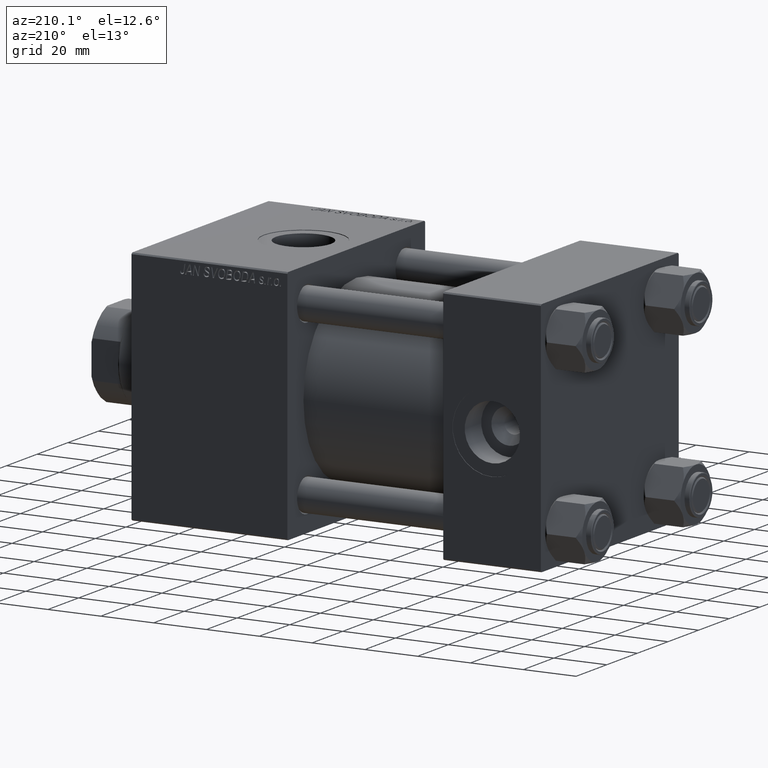
[diagram: clean part render]
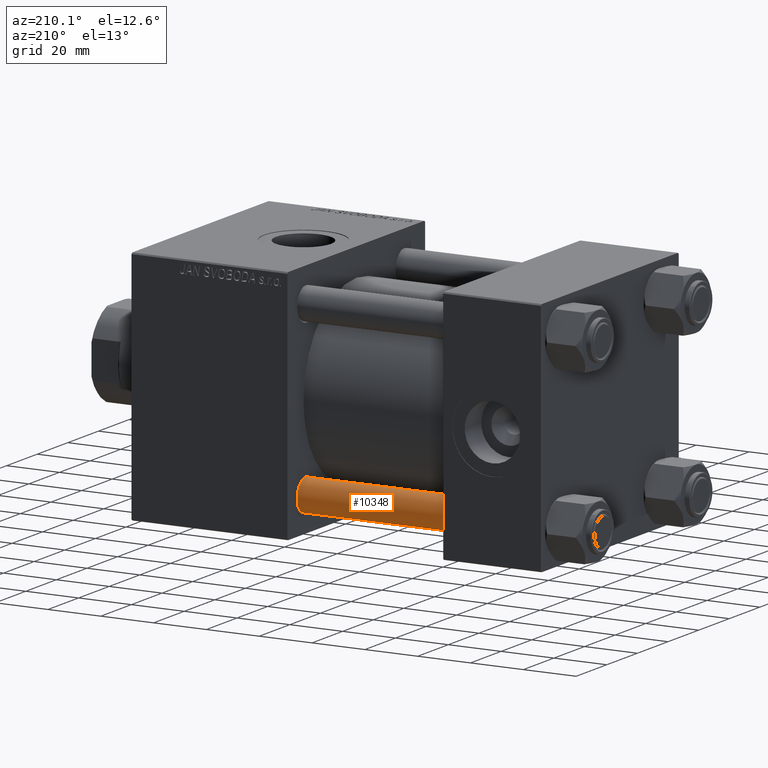
[diagram: same view with one face highlighted and labeled with its STEP entity id]
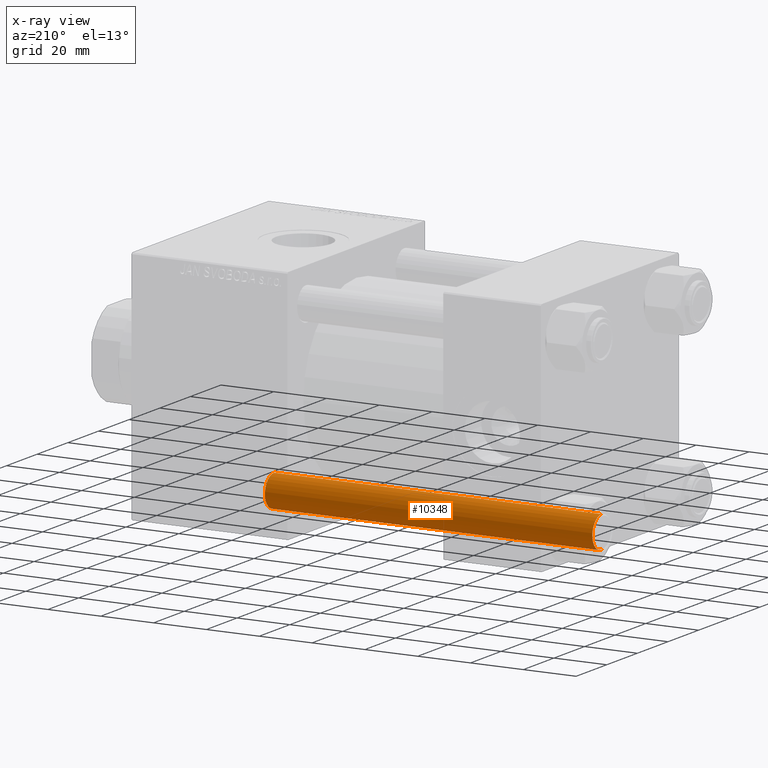
[diagram: x-ray of the same camera — body ghosted, the highlighted face saturated]
A machine part, auxiliary view. The second image highlights one B-rep face of the part: STEP entity #10348.
The next image is the same camera in x-ray: the body ghosted, the highlighted face saturated — about 0% of this face is hidden behind the body in this view.
In plain terms, the highlighted cylindrical surface (edge-blend (fillet) strip) has radius 6 mm, axis along (1, -0, -0).
Its self-contained STEP definition (entity closure, byte-faithful):
#469 = LINE ( 'NONE', #46675, #2949 ) ;
#1296 = VERTEX_POINT ( 'NONE', #43902 ) ;
#2242 = DIRECTION ( 'NONE',  ( 1.000000000000000000, 0.000000000000000000, 0.000000000000000000 ) ) ;
#2949 = VECTOR ( 'NONE', #16174, 1000.000000000000000 ) ;
#3173 = VERTEX_POINT ( 'NONE', #33052 ) ;
#3893 = LINE ( 'NONE', #46537, #8969 ) ;
#4288 = VERTEX_POINT ( 'NONE', #24934 ) ;
#5369 = DIRECTION ( 'NONE',  ( -0.000000000000000000, -0.000000000000000000, -1.000000000000000000 ) ) ;
#5945 = AXIS2_PLACEMENT_3D ( 'NONE', #9728, #6186, #24705 ) ;
#6186 = DIRECTION ( 'NONE',  ( 0.000000000000000000, 0.000000000000000000, -1.000000000000000000 ) ) ;
#8969 = VECTOR ( 'NONE', #11748, 1000.000000000000000 ) ;
#9728 = CARTESIAN_POINT ( 'NONE',  ( 0.000000000000000000, 0.000000000000000000, 124.5000000000000000 ) ) ;
#9817 = ORIENTED_EDGE ( 'NONE', *, *, #29481, .F. ) ;
#10074 = EDGE_CURVE ( 'NONE', #46132, #4288, #23768, .T. ) ;
#10348 = ADVANCED_FACE ( 'NONE', ( #13967 ), #29446, .T. ) ;
#11748 = DIRECTION ( 'NONE',  ( -0.000000000000000000, -0.000000000000000000, -1.000000000000000000 ) ) ;
#13967 = FACE_OUTER_BOUND ( 'NONE', #38427, .T. ) ;
#14591 = CARTESIAN_POINT ( 'NONE',  ( -6.000000000000000888, 0.000000000000000000, 124.5000000000000000 ) ) ;
#16174 = DIRECTION ( 'NONE',  ( -0.000000000000000000, -0.000000000000000000, -1.000000000000000000 ) ) ;
#17454 = CARTESIAN_POINT ( 'NONE',  ( 0.000000000000000000, 0.000000000000000000, 0.4999999999999865663 ) ) ;
#20912 = ORIENTED_EDGE ( 'NONE', *, *, #10074, .T. ) ;
#23768 = CIRCLE ( 'NONE', #5945, 6.000000000000000888 ) ;
#24705 = DIRECTION ( 'NONE',  ( 1.000000000000000000, 0.000000000000000000, 0.000000000000000000 ) ) ;
#24934 = CARTESIAN_POINT ( 'NONE',  ( 6.000000000000000888, 7.347880794884120722E-16, 124.5000000000000000 ) ) ;
#25324 = DIRECTION ( 'NONE',  ( -0.000000000000000000, -0.000000000000000000, 1.000000000000000000 ) ) ;
#25653 = DIRECTION ( 'NONE',  ( -1.000000000000000000, 0.000000000000000000, 0.000000000000000000 ) ) ;
#28685 = AXIS2_PLACEMENT_3D ( 'NONE', #17454, #25324, #2242 ) ;
#29446 = CYLINDRICAL_SURFACE ( 'NONE', #39995, 6.000000000000000888 ) ;
#29481 = EDGE_CURVE ( 'NONE', #46132, #3173, #3893, .T. ) ;
#32402 = ORIENTED_EDGE ( 'NONE', *, *, #36471, .T. ) ;
#33052 = CARTESIAN_POINT ( 'NONE',  ( -6.000000000000000888, 0.000000000000000000, 0.4999999999999865663 ) ) ;
#36471 = EDGE_CURVE ( 'NONE', #1296, #3173, #42515, .T. ) ;
#38427 = EDGE_LOOP ( 'NONE', ( #20912, #39182, #32402, #9817 ) ) ;
#39182 = ORIENTED_EDGE ( 'NONE', *, *, #45328, .T. ) ;
#39995 = AXIS2_PLACEMENT_3D ( 'NONE', #44958, #5369, #25653 ) ;
#42515 = CIRCLE ( 'NONE', #28685, 6.000000000000000888 ) ;
#43902 = CARTESIAN_POINT ( 'NONE',  ( 6.000000000000000888, 7.347880794884120722E-16, 0.4999999999999865663 ) ) ;
#44958 = CARTESIAN_POINT ( 'NONE',  ( 0.000000000000000000, 0.000000000000000000, 125.0000000000000000 ) ) ;
#45328 = EDGE_CURVE ( 'NONE', #4288, #1296, #469, .T. ) ;
#46132 = VERTEX_POINT ( 'NONE', #14591 ) ;
#46537 = CARTESIAN_POINT ( 'NONE',  ( -6.000000000000000888, 0.000000000000000000, 125.0000000000000000 ) ) ;
#46675 = CARTESIAN_POINT ( 'NONE',  ( 6.000000000000000888, 7.347880794884120722E-16, 125.0000000000000000 ) ) ;